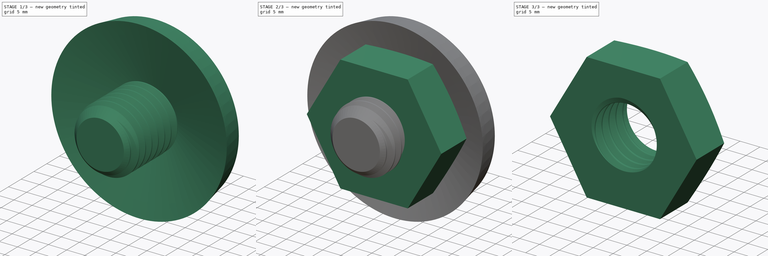
[diagram: build sequence overview — one tinted view per stage of 3, left to right]
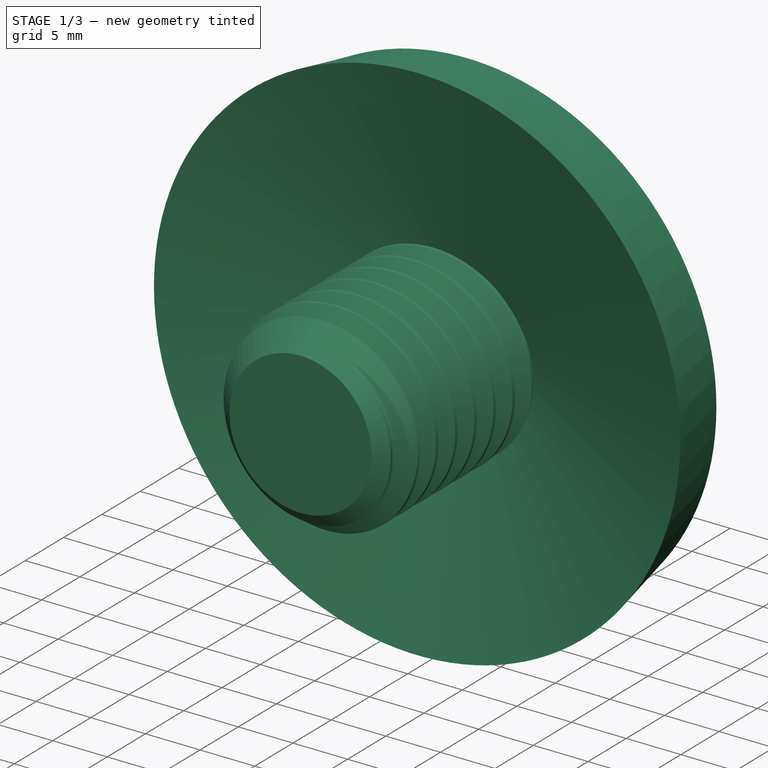
[diagram: stage 1 of 3 — iso view after this stage's code; geometry added in this stage tinted green]
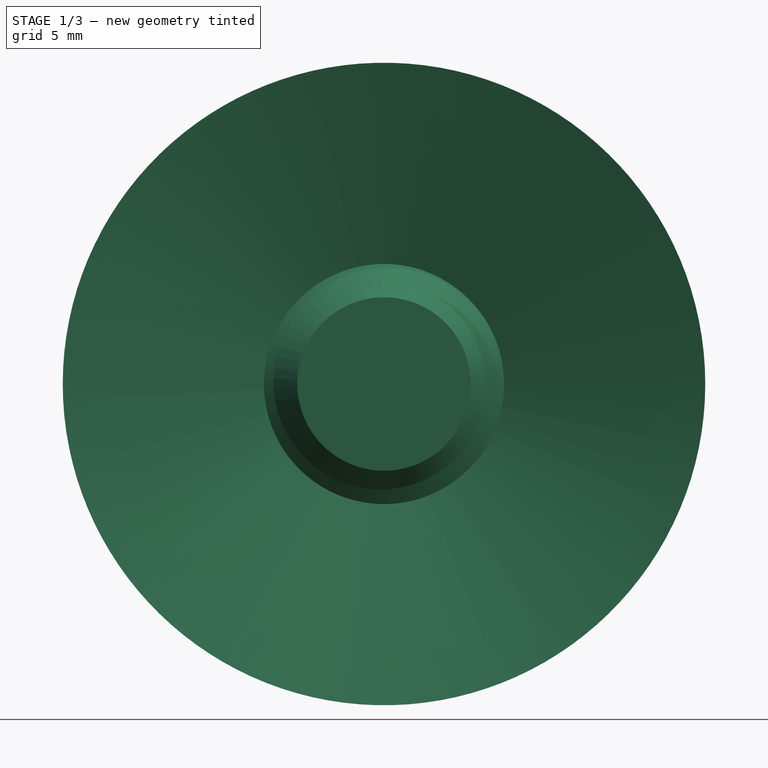
[diagram: stage 1 of 3 — front view after this stage's code; geometry added in this stage tinted green]
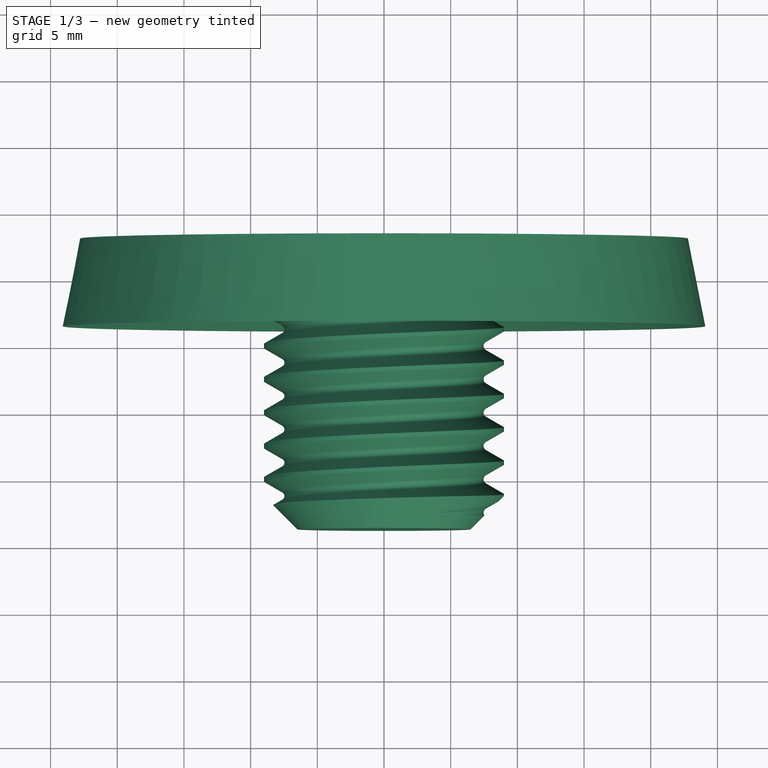
[diagram: stage 1 of 3 — top view after this stage's code; geometry added in this stage tinted green]
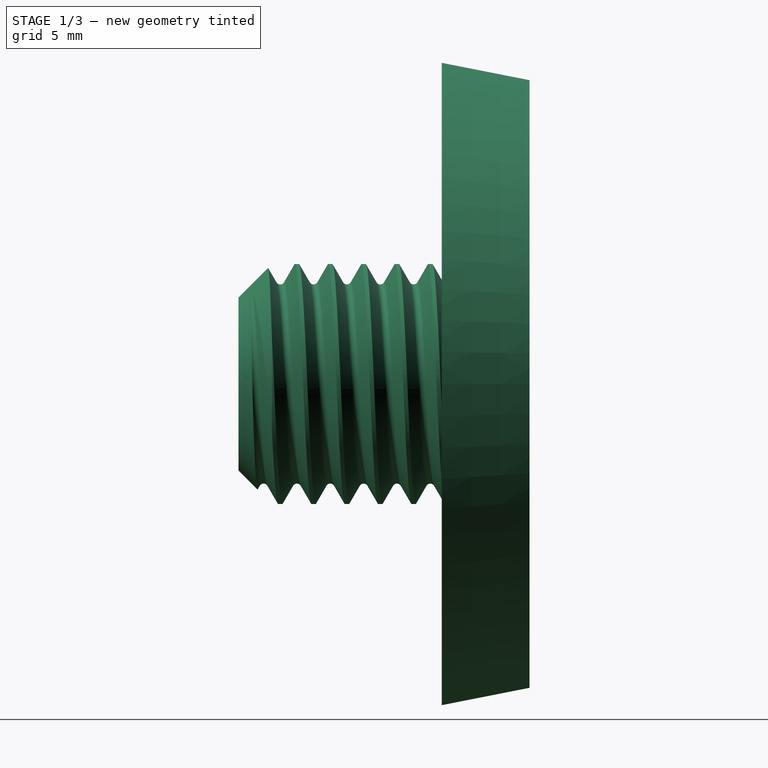
[diagram: stage 1 of 3 — right view after this stage's code; geometry added in this stage tinted green]
FCSTD DOCUMENT  (FreeCAD 0.21R33771 (Git))
Label: ex48
License: All rights reserved
LicenseURL: http://en.wikipedia.org/wiki/All_rights_reserved
objects: Sketcher::SketchObject×2, PartDesign::Body×2, Part::Cut×2, PartDesign::Pad×1, Part::FeaturePython×1, PartDesign::Revolution×1
note: 11 computed .brp shape members not serialized (recipe doc carries the construction recipe); baked Part::Feature solids carry a one-line shape summary decoded from their .brp

FEATURE [PartDesign::Body] Body
  Group = -> [Sketch,Pad]
  Origin = -> Origin
  Tip = -> Pad
FEATURE [Part::FeaturePython] ThreadedRod  label="(M18)x20-ThreadedRod"  # Fasteners workbench fastener (typed FeaturePython)
  Placement = pos=(0,-19,0) rot=(1,0,0;1.5708rad)
  diameter = 14
  diameterCustom = 6
  invert = false
  leftHanded = false
  length = 20
  matchOuter = false
  offset = 0
  pitchCustom = 1
  thread = true
  type = 4
FEATURE [Sketcher::SketchObject] Sketch001
  FullyConstrained = false
  MapMode = 5
  Support = -> [XY_Plane001]
  sketch-geometry (3):
    g0: LineSegment StartX=5.48949 StartY=1.8029 StartZ=0 EndX=24.0851 EndY=-3.76855 EndZ=0
    g1: LineSegment StartX=5.48949 StartY=1.8029 StartZ=0 EndX=22.7861 EndY=2.80798 EndZ=0
    g2: LineSegment StartX=22.7861 StartY=2.80798 StartZ=0 EndX=24.0851 EndY=-3.76855 EndZ=0
  constraints (3):
    c: Coincident(g2,g0)
    c: Coincident(g2,g1)
    c: Coincident(g0,g1)
FEATURE [PartDesign::Revolution] Revolution
  Angle = 360
  Axis = (0,1,0)
  Base = (0,0,0)
  Profile = -> Sketch001
  ReferenceAxis = -> Sketch001 [V_Axis]
  Refine = true
  Reversed = true
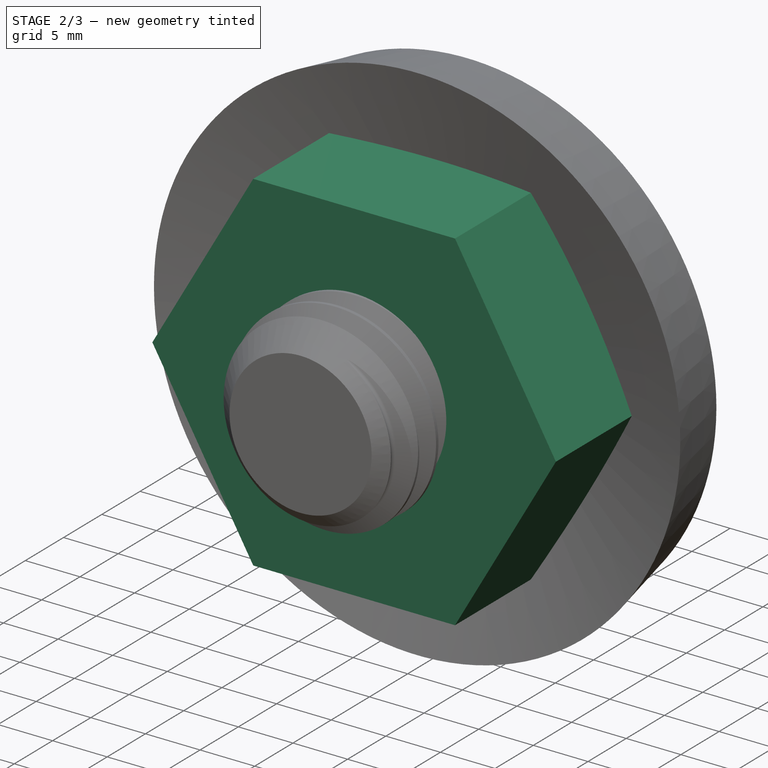
[diagram: stage 2 of 3 — iso view after this stage's code; geometry added in this stage tinted green]
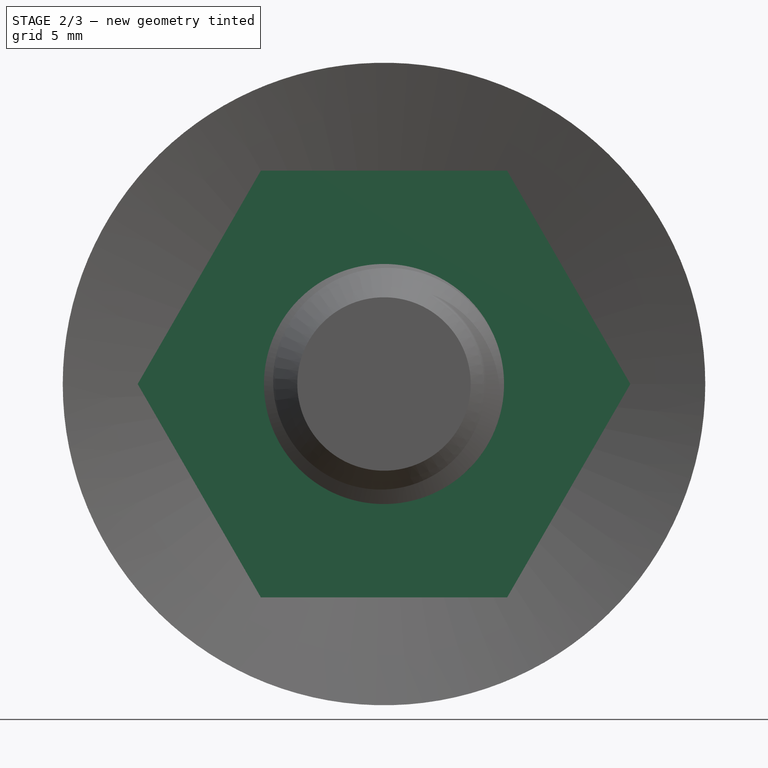
[diagram: stage 2 of 3 — front view after this stage's code; geometry added in this stage tinted green]
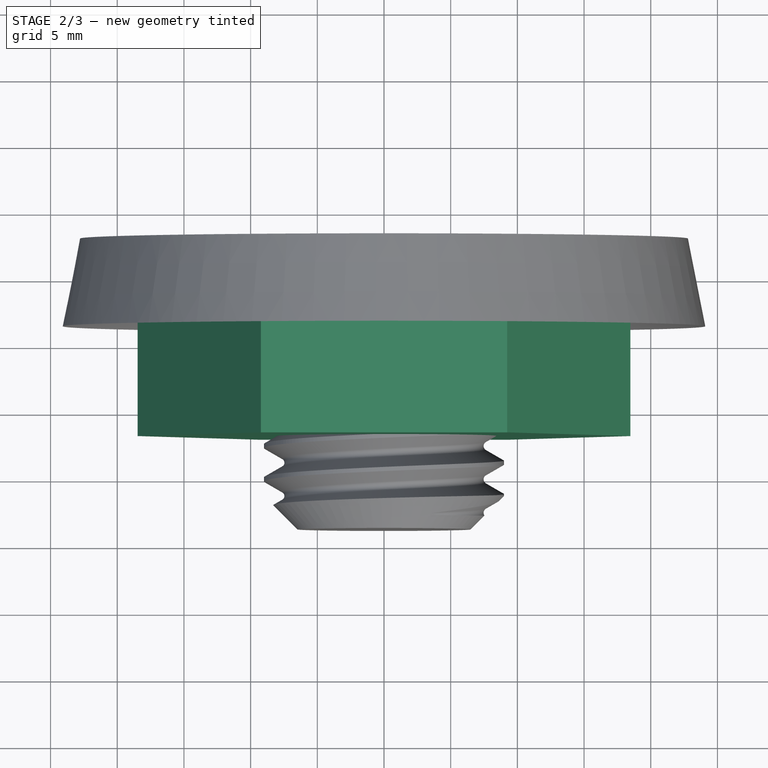
[diagram: stage 2 of 3 — top view after this stage's code; geometry added in this stage tinted green]
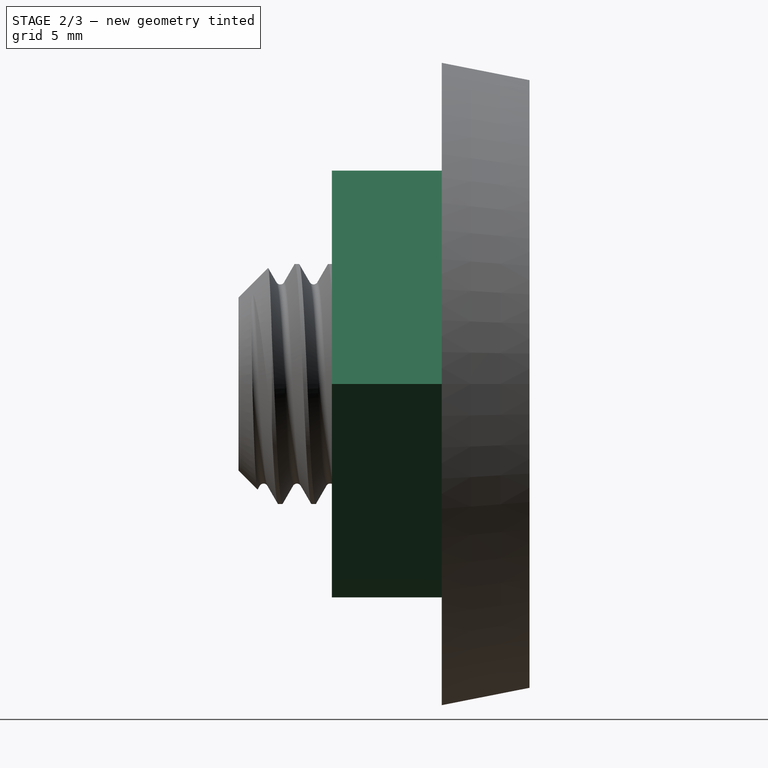
[diagram: stage 2 of 3 — right view after this stage's code; geometry added in this stage tinted green]
FEATURE [Sketcher::SketchObject] Sketch
  FullyConstrained = false
  MapMode = 5
  Placement = pos=(0,0,0) rot=(1,0,0;1.5708rad)
  Support = -> [XZ_Plane]
  sketch-geometry (7):
    g0: LineSegment StartX=9.23358 StartY=-15.993 StartZ=0 EndX=18.4672 EndY=8.6207e-12 EndZ=0
    g1: LineSegment StartX=18.4672 StartY=8.6207e-12 StartZ=0 EndX=9.23358 EndY=15.993 EndZ=0
    g2: LineSegment StartX=9.23358 StartY=15.993 StartZ=0 EndX=-9.23358 EndY=15.993 EndZ=0
    g3: LineSegment StartX=-9.23358 StartY=15.993 StartZ=0 EndX=-18.4672 EndY=-3.3715e-12 EndZ=0
    g4: LineSegment StartX=-18.4672 StartY=-3.3715e-12 StartZ=0 EndX=-9.23358 EndY=-15.993 EndZ=0
    g5: LineSegment StartX=-9.23358 StartY=-15.993 StartZ=0 EndX=9.23358 EndY=-15.993 EndZ=0
    g6: Circle CenterX=0 CenterY=0 CenterZ=0 NormalX=0 NormalY=0 NormalZ=1 AngleXU=0 Radius=18.4672
  constraints (15):
    c: Coincident(g0,g1)
    c: Coincident(g1,g2)
    c: Coincident(g2,g3)
    c: Coincident(g3,g4)
    c: Coincident(g4,g5)
    c: Coincident(g5,g0)
    c: Equal(g0, g1-g5) x5
    c: PointOnObject(g0,g6)
    c: PointOnObject(g1,g6)
    c: PointOnObject(g2,g6)
    c: PointOnObject(g3,g6)
    c: PointOnObject(g4,g6)
    c: PointOnObject(g5,g6)
    c: Coincident(g6,g-1)
    c: Parallel(g2,g-1)
FEATURE [PartDesign::Pad] Pad
  Direction = (0,-1,2e-16)
  Length = 12
  Length2 = 10
  Placement = pos=(0,0,0) rot=(1,0,0;1.5708rad)
  Profile = -> Sketch
  ReferenceAxis = -> Sketch [N_Axis]
  Refine = true
  Type = 0
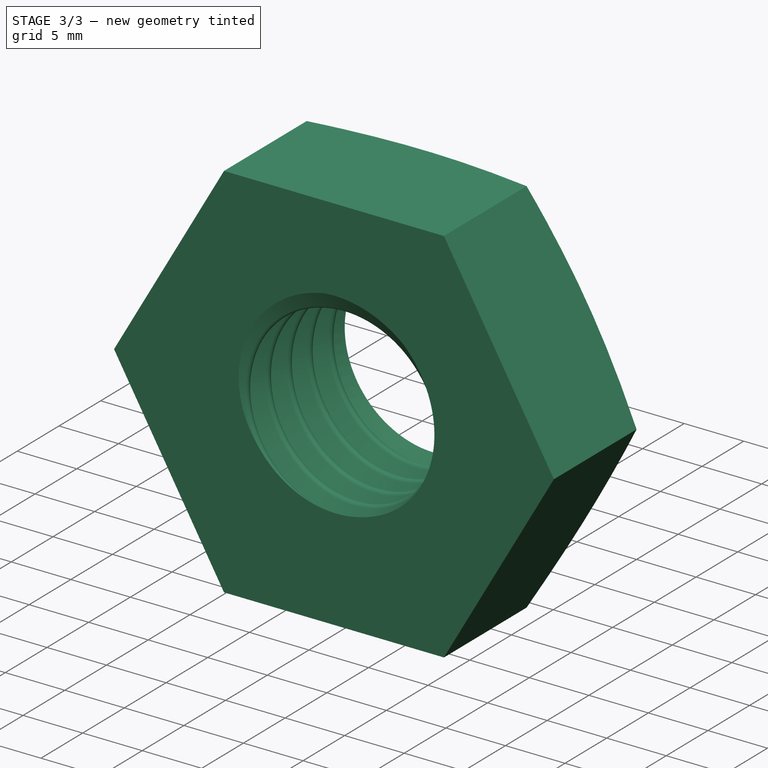
[diagram: stage 3 of 3 — iso view after this stage's code; geometry added in this stage tinted green]
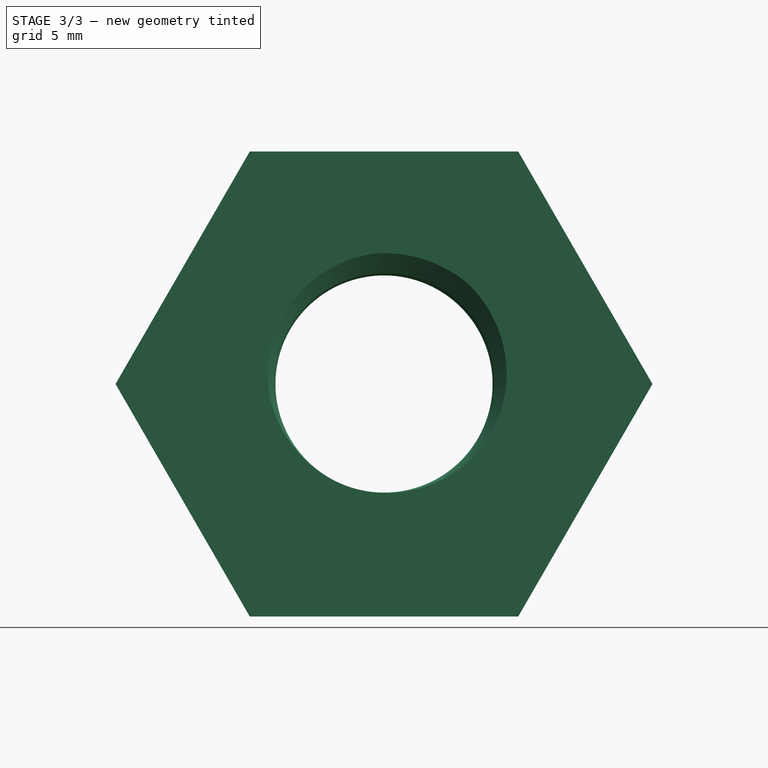
[diagram: stage 3 of 3 — front view after this stage's code; geometry added in this stage tinted green]
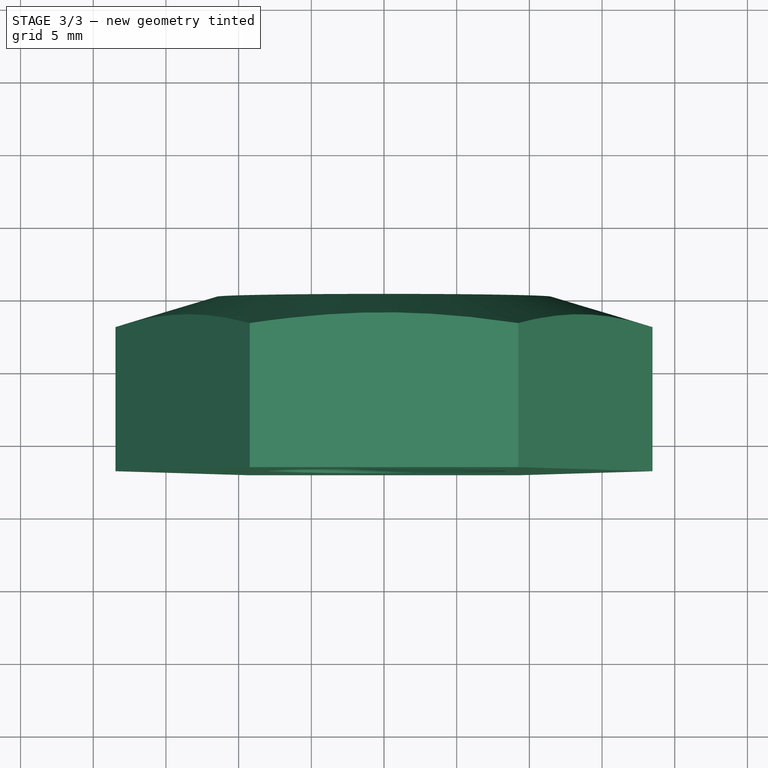
[diagram: stage 3 of 3 — top view after this stage's code; geometry added in this stage tinted green]
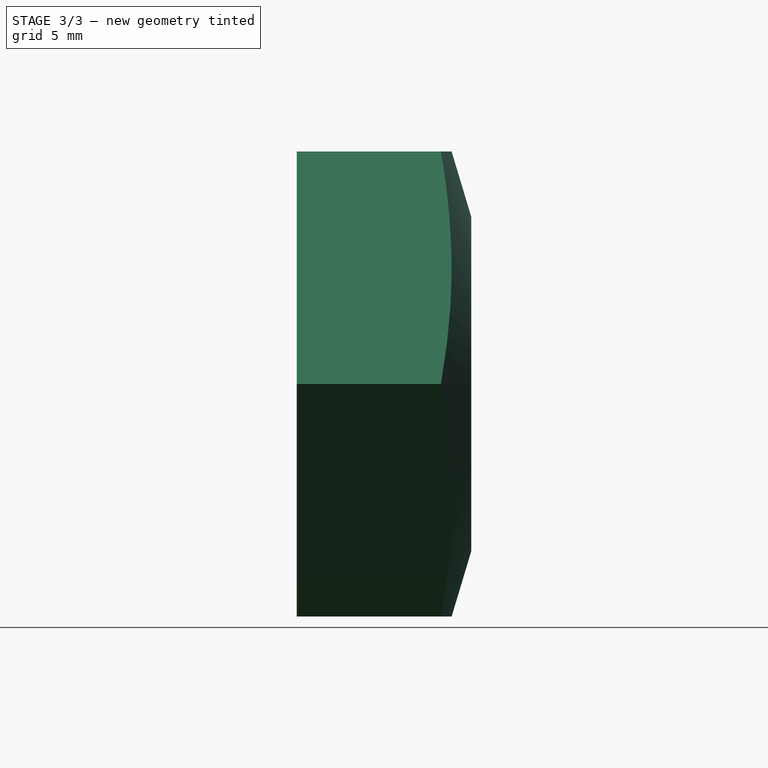
[diagram: stage 3 of 3 — right view after this stage's code; geometry added in this stage tinted green]
FEATURE [Part::Cut] Cut
  Base = -> Body
  Refine = true
  Tool = -> ThreadedRod
FEATURE [PartDesign::Body] Body001
  Group = -> [Sketch001,Revolution]
  Origin = -> Origin001
  Tip = -> Revolution
FEATURE [Part::Cut] Cut001
  Base = -> Cut
  Refine = true
  Tool = -> Body001
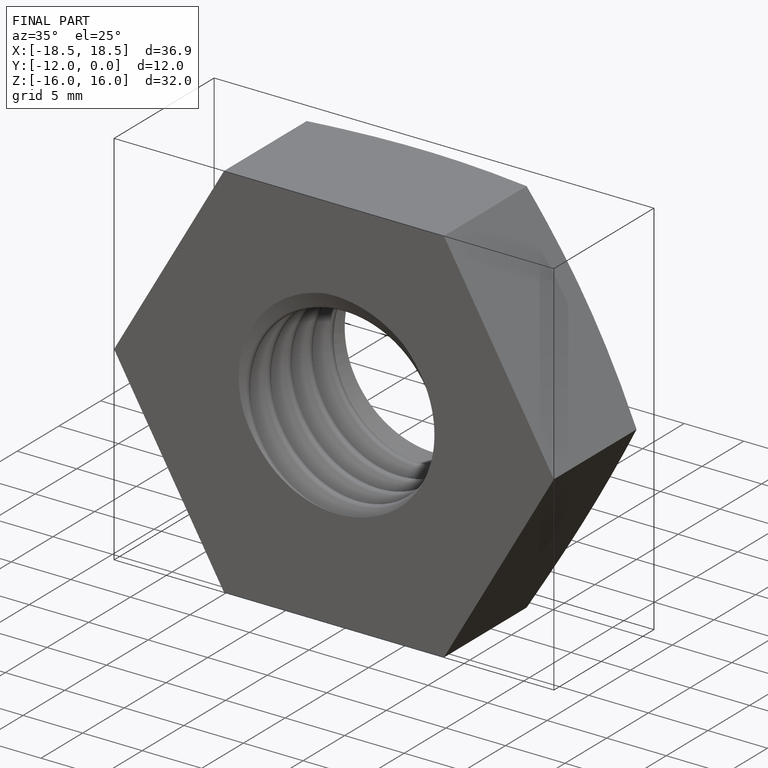
[diagram: finished part — iso view with bounding-box wireframe]
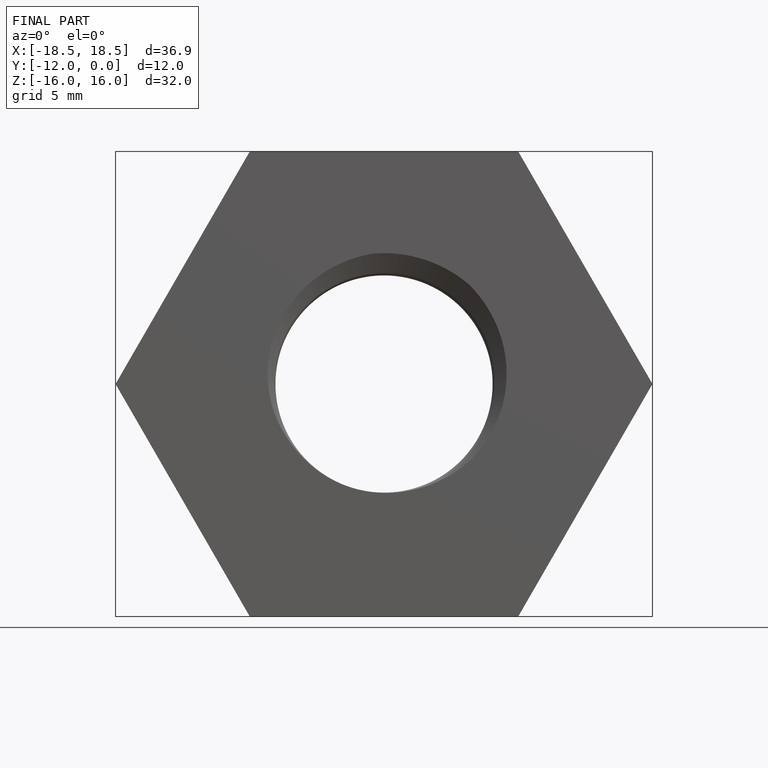
[diagram: finished part — front view with bounding-box wireframe]
